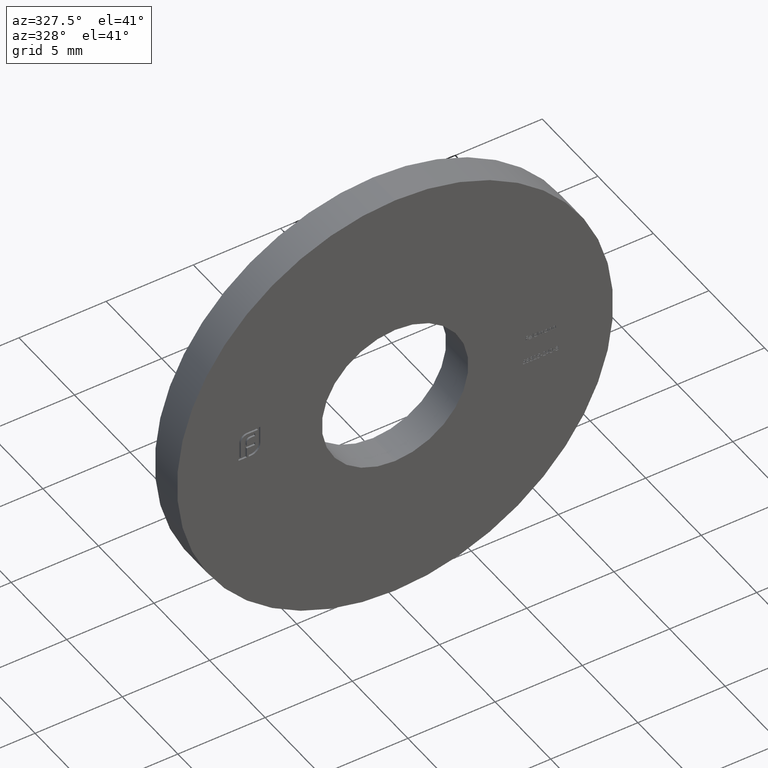
[diagram: clean part render]
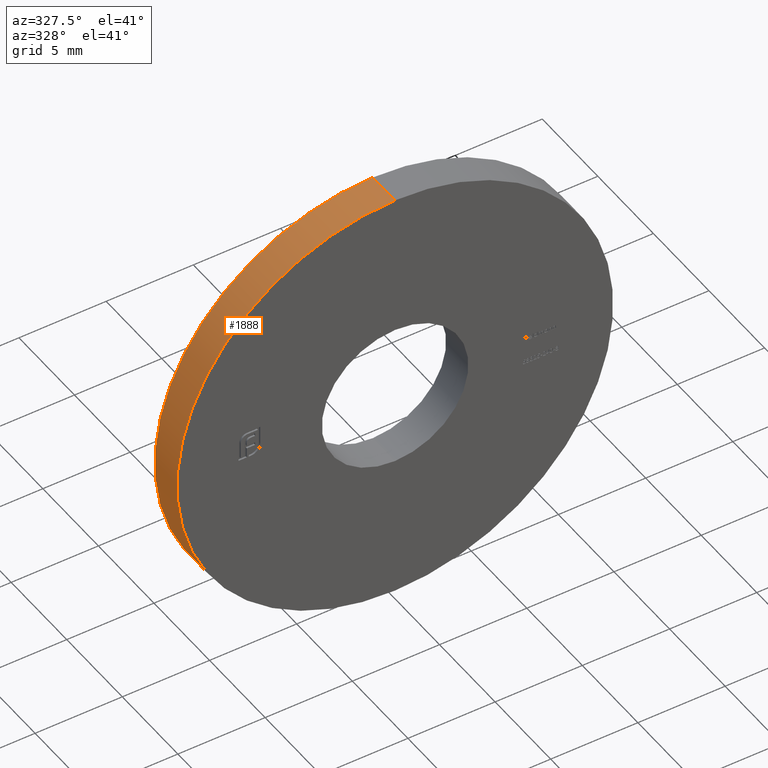
[diagram: same view with one face highlighted and labeled with its STEP entity id]
A machine part, auxiliary view. The second image highlights one B-rep face of the part: STEP entity #1888.
In plain terms, the highlighted cylindrical surface (partial cylindrical patch) has radius 12.5 mm, axis along (-0, -1, -0).
Its self-contained STEP definition (entity closure, byte-faithful):
#117 = CARTESIAN_POINT ( 'NONE',  ( 0.000000000000000000, 1.000000000000000000, -12.50000000000000000 ) ) ;
#316 = ORIENTED_EDGE ( 'NONE', *, *, #7293, .F. ) ;
#982 = EDGE_CURVE ( 'NONE', #14302, #6372, #17294, .T. ) ;
#1639 = DIRECTION ( 'NONE',  ( 0.000000000000000000, 1.000000000000000000, 0.000000000000000000 ) ) ;
#1888 = ADVANCED_FACE ( 'NONE', ( #16433 ), #11219, .T. ) ;
#2187 = LINE ( 'NONE', #117, #3004 ) ;
#2202 = DIRECTION ( 'NONE',  ( 0.000000000000000000, 1.000000000000000000, 0.000000000000000000 ) ) ;
#2329 = VERTEX_POINT ( 'NONE', #3940 ) ;
#2593 = EDGE_CURVE ( 'NONE', #13632, #14302, #2187, .T. ) ;
#2892 = DIRECTION ( 'NONE',  ( -0.000000000000000000, -1.000000000000000000, -0.000000000000000000 ) ) ;
#3004 = VECTOR ( 'NONE', #13543, 1000.000000000000000 ) ;
#3033 = CARTESIAN_POINT ( 'NONE',  ( 0.000000000000000000, -1.000000000000000000, -12.50000000000000000 ) ) ;
#3940 = CARTESIAN_POINT ( 'NONE',  ( 1.530808498934191521E-15, 1.000000000000000000, 12.50000000000000000 ) ) ;
#4492 = CIRCLE ( 'NONE', #7339, 12.50000000000000000 ) ;
#5191 = AXIS2_PLACEMENT_3D ( 'NONE', #6901, #2892, #6955 ) ;
#6372 = VERTEX_POINT ( 'NONE', #7313 ) ;
#6425 = DIRECTION ( 'NONE',  ( 0.000000000000000000, 0.000000000000000000, 1.000000000000000000 ) ) ;
#6601 = VECTOR ( 'NONE', #16714, 1000.000000000000000 ) ;
#6901 = CARTESIAN_POINT ( 'NONE',  ( 0.000000000000000000, 1.000000000000000000, 0.000000000000000000 ) ) ;
#6955 = DIRECTION ( 'NONE',  ( 0.000000000000000000, 0.000000000000000000, -1.000000000000000000 ) ) ;
#6982 = CARTESIAN_POINT ( 'NONE',  ( 0.000000000000000000, -1.000000000000000000, 0.000000000000000000 ) ) ;
#7293 = EDGE_CURVE ( 'NONE', #13632, #2329, #4492, .T. ) ;
#7313 = CARTESIAN_POINT ( 'NONE',  ( 1.530808498934191521E-15, -1.000000000000000000, 12.50000000000000000 ) ) ;
#7339 = AXIS2_PLACEMENT_3D ( 'NONE', #12970, #2202, #6425 ) ;
#7510 = EDGE_CURVE ( 'NONE', #2329, #6372, #10155, .T. ) ;
#8048 = CARTESIAN_POINT ( 'NONE',  ( 1.530808498934191521E-15, 1.000000000000000000, 12.50000000000000000 ) ) ;
#8383 = ORIENTED_EDGE ( 'NONE', *, *, #2593, .T. ) ;
#8403 = ORIENTED_EDGE ( 'NONE', *, *, #982, .T. ) ;
#10155 = LINE ( 'NONE', #8048, #6601 ) ;
#11034 = DIRECTION ( 'NONE',  ( 0.000000000000000000, 0.000000000000000000, 1.000000000000000000 ) ) ;
#11219 = CYLINDRICAL_SURFACE ( 'NONE', #5191, 12.50000000000000000 ) ;
#12493 = AXIS2_PLACEMENT_3D ( 'NONE', #6982, #1639, #11034 ) ;
#12970 = CARTESIAN_POINT ( 'NONE',  ( 0.000000000000000000, 1.000000000000000000, 0.000000000000000000 ) ) ;
#13543 = DIRECTION ( 'NONE',  ( -0.000000000000000000, -1.000000000000000000, -0.000000000000000000 ) ) ;
#13632 = VERTEX_POINT ( 'NONE', #16709 ) ;
#14302 = VERTEX_POINT ( 'NONE', #3033 ) ;
#15539 = EDGE_LOOP ( 'NONE', ( #16382, #316, #8383, #8403 ) ) ;
#16382 = ORIENTED_EDGE ( 'NONE', *, *, #7510, .F. ) ;
#16433 = FACE_OUTER_BOUND ( 'NONE', #15539, .T. ) ;
#16709 = CARTESIAN_POINT ( 'NONE',  ( 0.000000000000000000, 1.000000000000000000, -12.50000000000000000 ) ) ;
#16714 = DIRECTION ( 'NONE',  ( -0.000000000000000000, -1.000000000000000000, -0.000000000000000000 ) ) ;
#17294 = CIRCLE ( 'NONE', #12493, 12.50000000000000000 ) ;